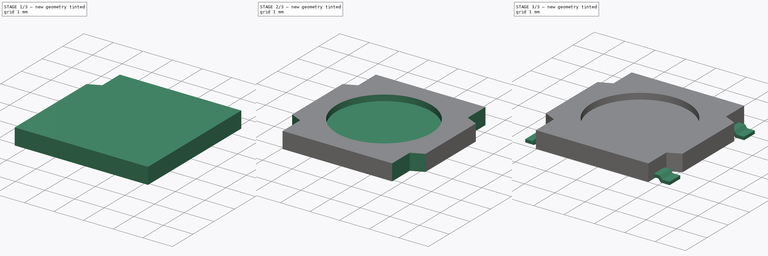
[diagram: build sequence overview — one tinted view per stage of 3, left to right]
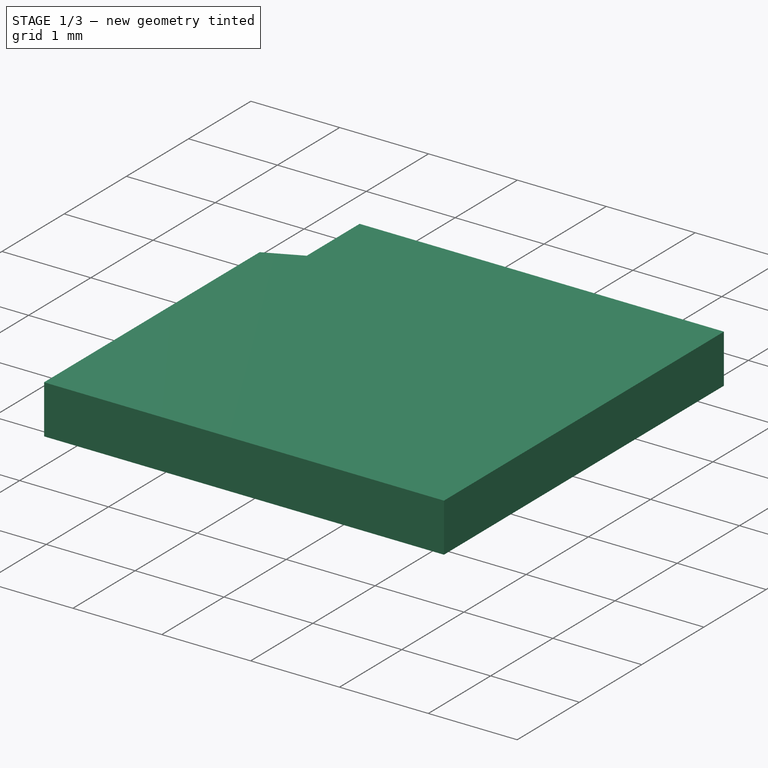
[diagram: stage 1 of 3 — iso view after this stage's code; geometry added in this stage tinted green]
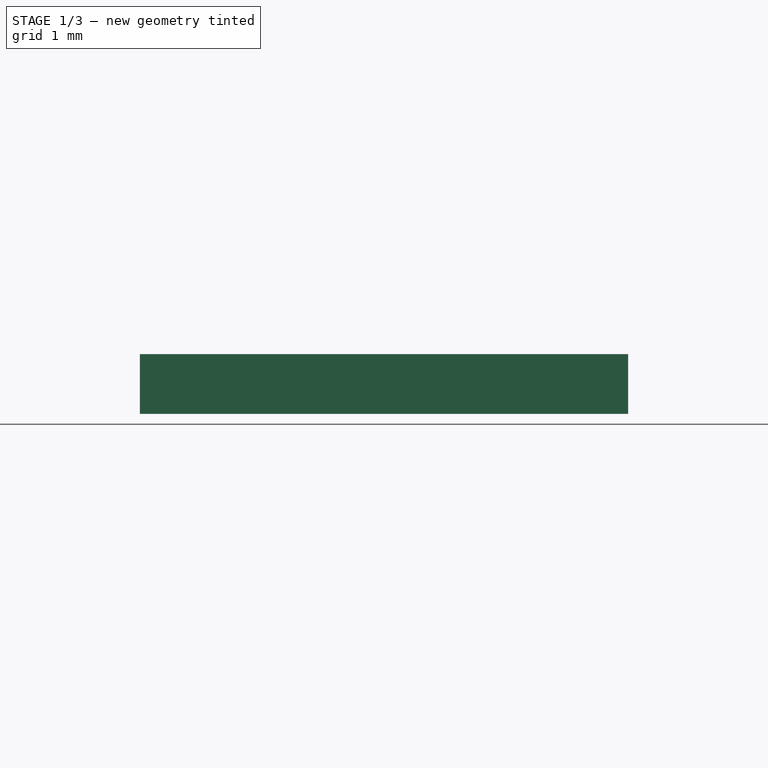
[diagram: stage 1 of 3 — front view after this stage's code; geometry added in this stage tinted green]
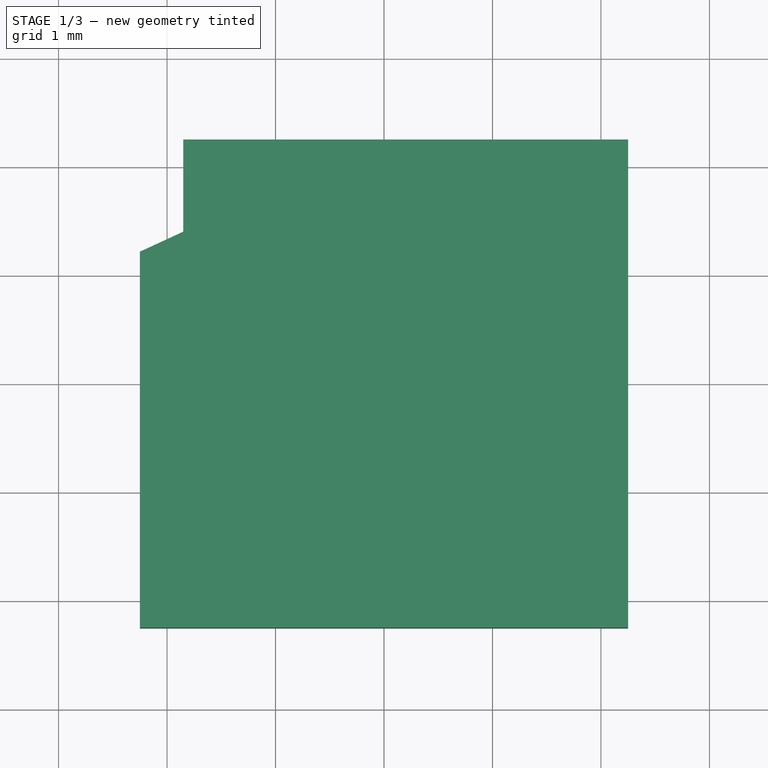
[diagram: stage 1 of 3 — top view after this stage's code; geometry added in this stage tinted green]
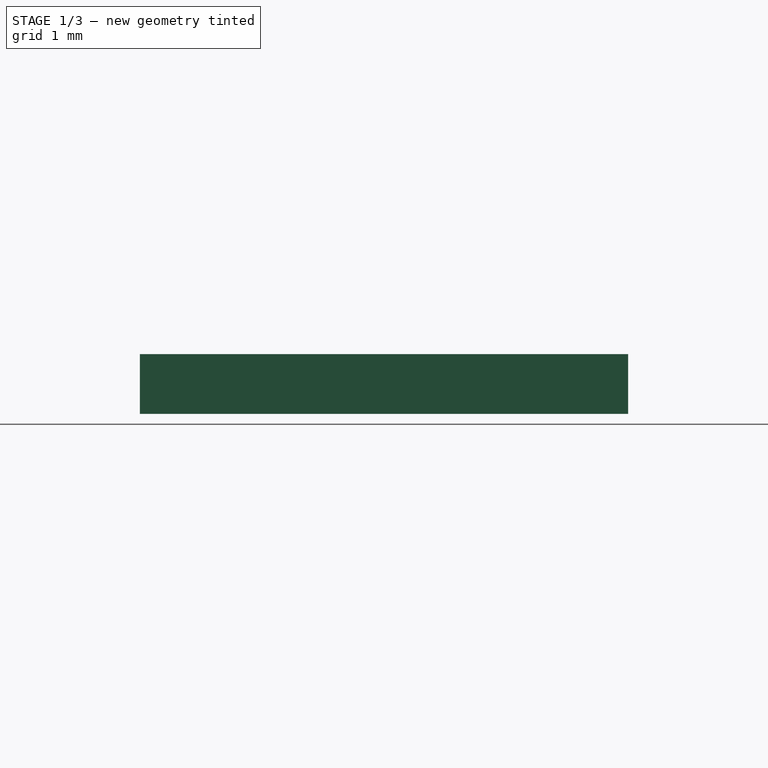
[diagram: stage 1 of 3 — right view after this stage's code; geometry added in this stage tinted green]
FCSTD DOCUMENT  (FreeCAD 1.0R39109 (Git))
Label: TL3315NF100Q
License: All rights reserved
LicenseURL: http://en.wikipedia.org/wiki/All_rights_reserved
objects: Sketcher::SketchObject×5, PartDesign::Mirrored×4, PartDesign::Pad×2, PartDesign::Pocket×2, PartDesign::MultiTransform×2, PartDesign::Plane×1, PartDesign::Body×1
note: 36 computed .brp shape members not serialized (recipe doc carries the construction recipe); baked Part::Feature solids carry a one-line shape summary decoded from their .brp

FEATURE [Sketcher::SketchObject] Sketch
  ArcFitTolerance = 1e-06
  AttachmentSupport = -> [XY_Plane]
  FullyConstrained = true
  MakeInternals = false
  MapMode = 5
  sketch-geometry (4):
    g0: LineSegment StartX=-2.25 StartY=2.25 StartZ=0 EndX=-2.25 EndY=-2.25 EndZ=0
    g1: LineSegment StartX=-2.25 StartY=-2.25 StartZ=0 EndX=2.25 EndY=-2.25 EndZ=0
    g2: LineSegment StartX=2.25 StartY=-2.25 StartZ=0 EndX=2.25 EndY=2.25 EndZ=0
    g3: LineSegment StartX=2.25 StartY=2.25 StartZ=0 EndX=-2.25 EndY=2.25 EndZ=0
  constraints (11):
    c: Coincident(g0,g1)
    c: Coincident(g1,g2)
    c: Coincident(g2,g3)
    c: Coincident(g3,g0)
    c: Vertical(g0)
    c: Vertical(g2)
    c: Horizontal(g1)
    c: Horizontal(g3)
    c: Symmetric(g2,g0,g-1)
    c: DistanceX(g3,g3) = 4.5
    c: DistanceY(g0,g0) = 4.5
FEATURE [PartDesign::Pad] Pad  label="main shape"
  Direction = (0,0,1)
  Length = 0.55
  Length2 = 10
  Profile = -> Sketch
  ReferenceAxis = -> Sketch [N_Axis]
  Suppressed = false
  Type = 0
FEATURE [Sketcher::SketchObject] Sketch001
  ArcFitTolerance = 1e-06
  AttachmentSupport = -> [XY_Plane]
  FullyConstrained = true
  MakeInternals = false
  MapMode = 5
  sketch-geometry (4):
    g0: LineSegment StartX=-1.85 StartY=2.5 StartZ=0 EndX=-1.85 EndY=1.4 EndZ=0
    g1: LineSegment StartX=-1.85 StartY=1.4 StartZ=0 EndX=-2.5 EndY=1.1 EndZ=0
    g2: LineSegment StartX=-1.85 StartY=2.5 StartZ=0 EndX=-2.5 EndY=2.5 EndZ=0
    g3: LineSegment StartX=-2.5 StartY=2.5 StartZ=0 EndX=-2.5 EndY=1.1 EndZ=0
  constraints (12):
    c: Vertical(g0)
    c: Coincident(g1,g0)
    c: Coincident(g2,g0)
    c: Horizontal(g2)
    c: Coincident(g3,g2)
    c: Coincident(g3,g1)
    c: Vertical(g3)
    c: DistanceX(g0,g-1) = 1.85
    c: DistanceX(g1,g-1) = 2.5
    c: DistanceY(g-1,g2) = 2.5
    c: DistanceY(g0,g0) = 1.1
    c: DistanceY(g-1,g1) = 1.1
FEATURE [PartDesign::Pocket] Pocket  label="main cut"
  BaseFeature = -> Pad
  Direction = (0,0,-1)
  Length = 5
  Length2 = 5
  Profile = -> Sketch001
  ReferenceAxis = -> Sketch001 [N_Axis]
  Reversed = true
  Suppressed = false
  Type = 1
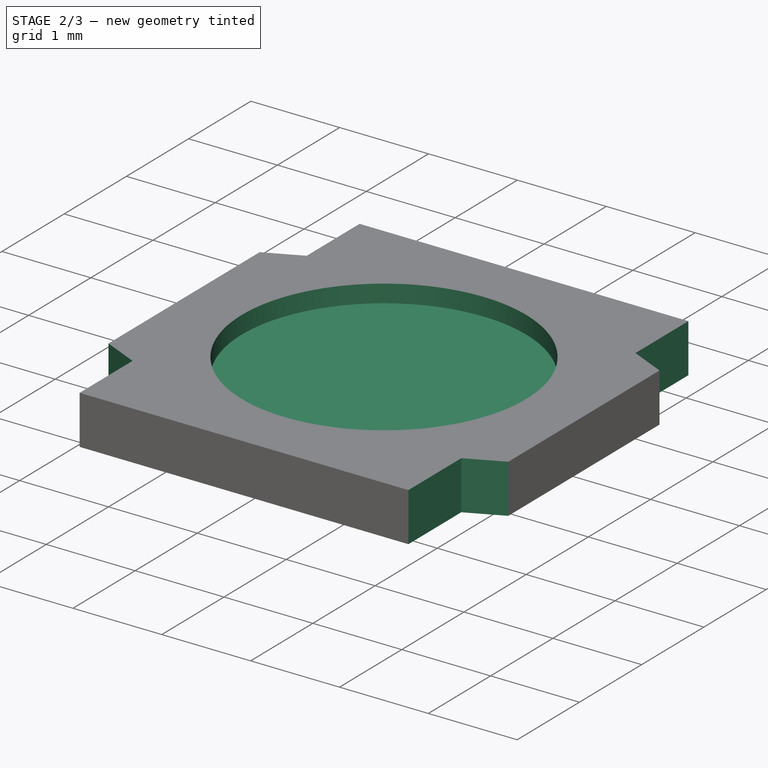
[diagram: stage 2 of 3 — iso view after this stage's code; geometry added in this stage tinted green]
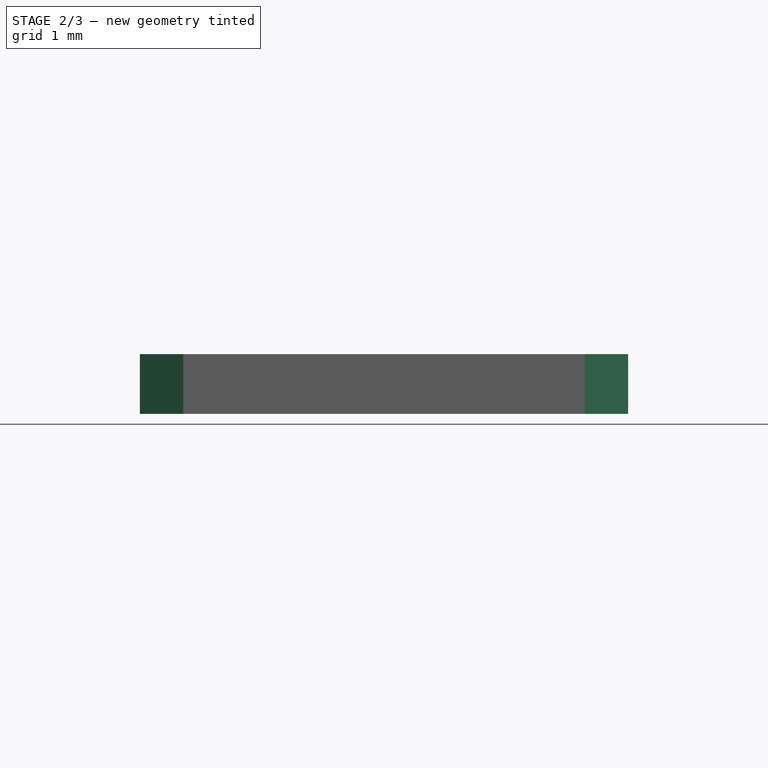
[diagram: stage 2 of 3 — front view after this stage's code; geometry added in this stage tinted green]
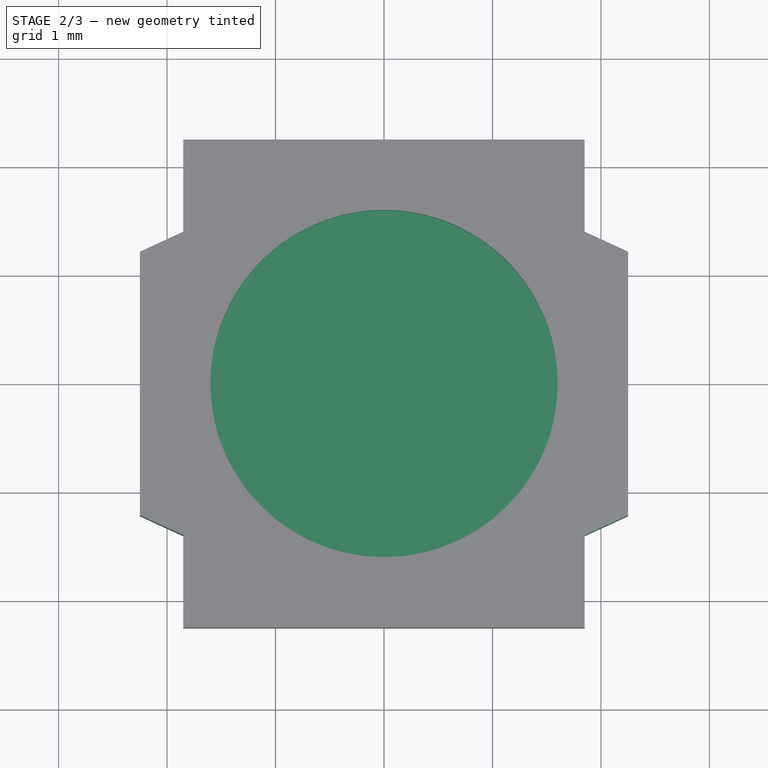
[diagram: stage 2 of 3 — top view after this stage's code; geometry added in this stage tinted green]
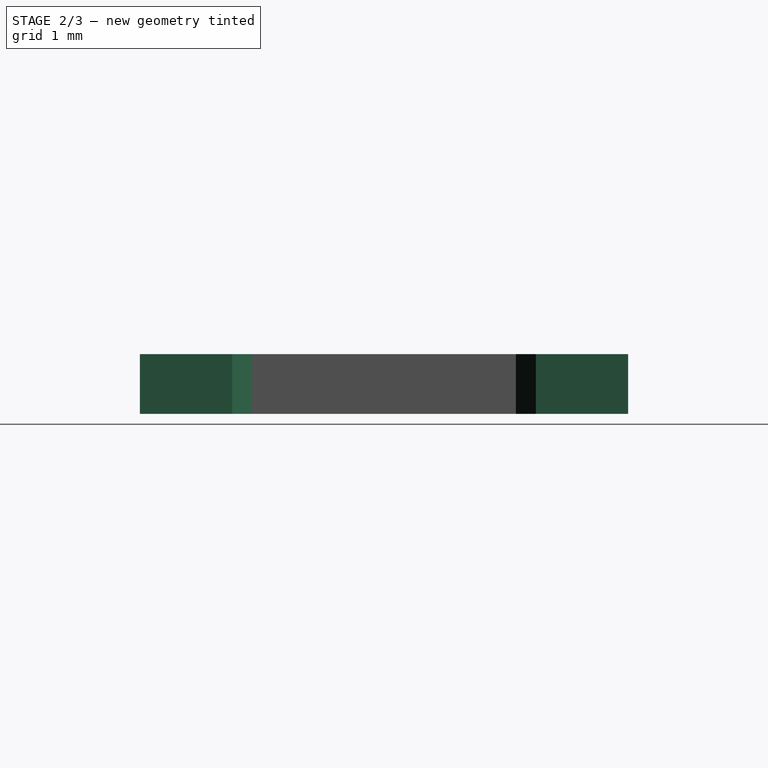
[diagram: stage 2 of 3 — right view after this stage's code; geometry added in this stage tinted green]
FEATURE [PartDesign::Mirrored] Mirrored
  MirrorPlane = -> XZ_Plane
  Suppressed = false
  TransformMode = 0
FEATURE [PartDesign::Mirrored] Mirrored001
  MirrorPlane = -> YZ_Plane
  Suppressed = false
  TransformMode = 0
FEATURE [PartDesign::MultiTransform] MultiTransform  label="main cut transform"
  BaseFeature = -> Pocket
  Originals = -> [Pocket]
  Suppressed = false
  TransformMode = 0
  Transformations = -> [Mirrored,Mirrored001]
FEATURE [Sketcher::SketchObject] Sketch002
  ArcFitTolerance = 1e-06
  AttachmentSupport = -> [MultiTransform]
  FullyConstrained = true
  MakeInternals = false
  MapMode = 5
  Placement = pos=(0,0,0.55) rot=(0,0,1;0rad)
  sketch-geometry (1):
    g0: Circle CenterX=0 CenterY=0 CenterZ=0 NormalX=0 NormalY=0 NormalZ=1 AngleXU=0 Radius=1.6
  constraints (2):
    c: Coincident(g0,g-1)
    c: Diameter(g0) = 3.2
FEATURE [PartDesign::Pocket] Pocket001  label="button cut"
  BaseFeature = -> MultiTransform
  Direction = (0,0,-1)
  Length = 0.2
  Length2 = 5
  Profile = -> Sketch002
  ReferenceAxis = -> Sketch002 [N_Axis]
  Suppressed = false
  Type = 0
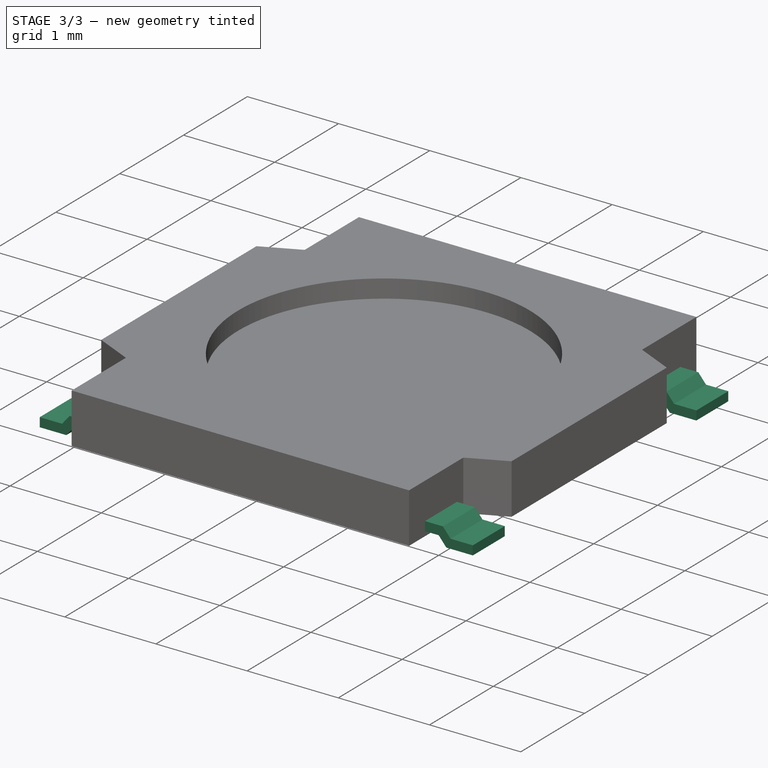
[diagram: stage 3 of 3 — iso view after this stage's code; geometry added in this stage tinted green]
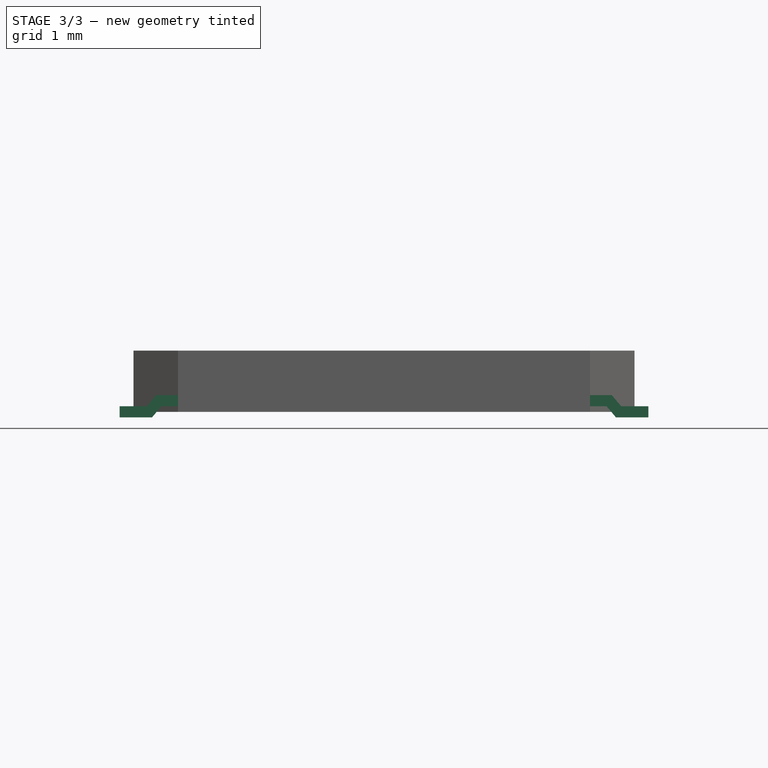
[diagram: stage 3 of 3 — front view after this stage's code; geometry added in this stage tinted green]
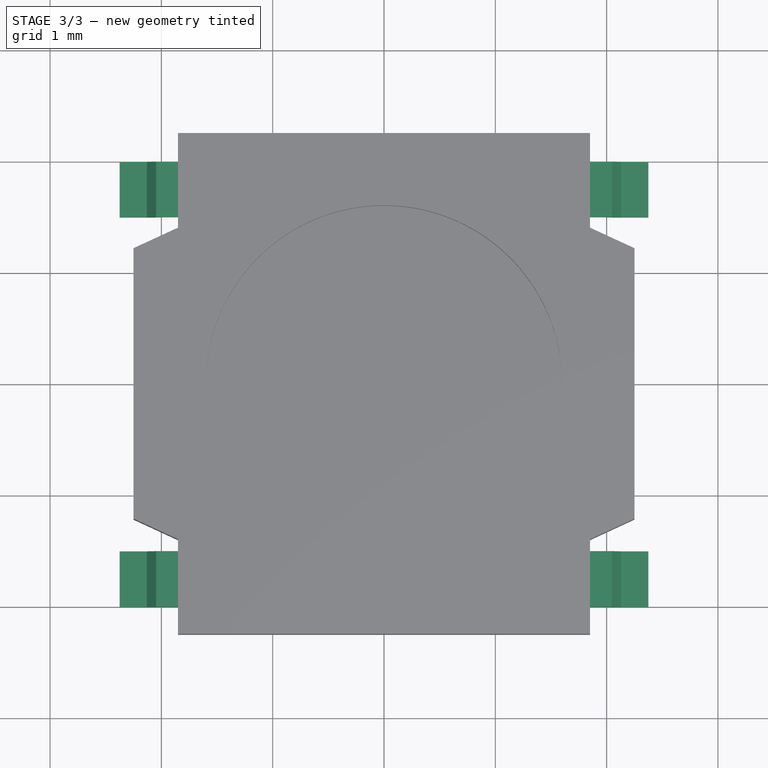
[diagram: stage 3 of 3 — top view after this stage's code; geometry added in this stage tinted green]
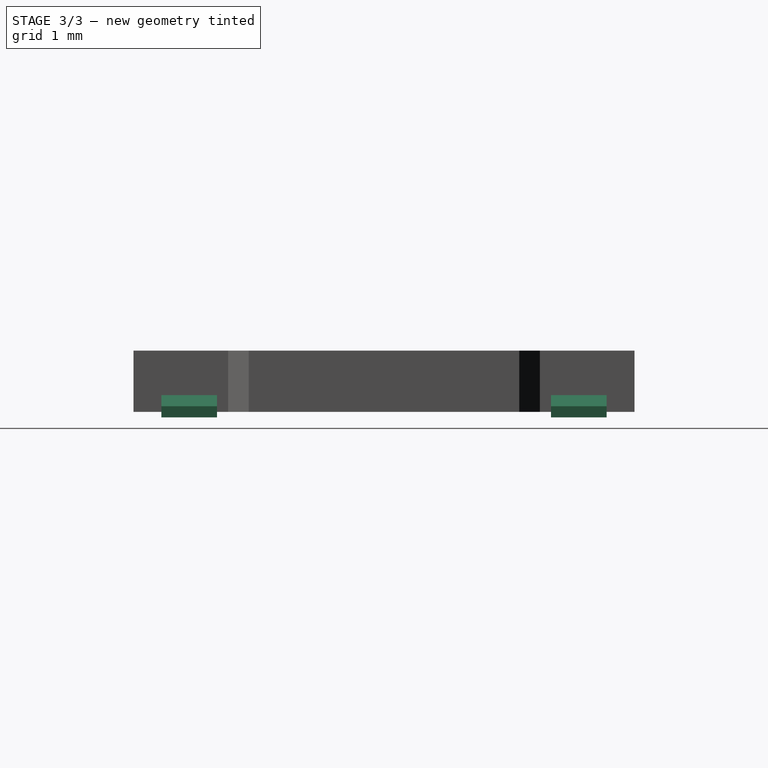
[diagram: stage 3 of 3 — right view after this stage's code; geometry added in this stage tinted green]
FEATURE [PartDesign::Plane] DatumPlane  label="terminal plane"
  AttachmentOffset = pos=(0,0,-1.75) rot=(0,0,1;0rad)
  AttachmentSupport = -> [XZ_Plane]
  Length = 60
  MapMode = 5
  Placement = pos=(0,1.75,-4e-16) rot=(1,0,0;1.5708rad)
  ResizeMode = 0
  Width = 60
FEATURE [Sketcher::SketchObject] Sketch003
  ArcFitTolerance = 1e-06
  AttachmentSupport = -> [DatumPlane]
  FullyConstrained = true
  MakeInternals = false
  MapMode = 5
  Placement = pos=(0,1.75,-4e-16) rot=(1,0,0;1.5708rad)
  sketch-geometry (9):
    g0: LineSegment StartX=-2.375 StartY=-0.05 StartZ=0 EndX=-2.375 EndY=0.05 EndZ=0
    g1: LineSegment StartX=-2.375 StartY=-0.05 StartZ=0 EndX=-2.08391 EndY=-0.05 EndZ=0
    g2: LineSegment StartX=-2.08391 StartY=-0.05 StartZ=0 EndX=-2 EndY=0.05 EndZ=0
    g3: LineSegment StartX=-2.375 StartY=0.05 StartZ=0 EndX=-2.13054 EndY=0.05 EndZ=0
    g4: LineSegment StartX=-2.13054 StartY=0.05 StartZ=0 EndX=-2.04663 EndY=0.15 EndZ=0
    g5: LineSegment StartX=-2.04663 StartY=0.15 StartZ=0 EndX=-1.75554 EndY=0.15 EndZ=0
    g6: LineSegment StartX=-2 StartY=0.05 StartZ=0 EndX=-1.75554 EndY=0.05 EndZ=0
    g7: LineSegment [constr] StartX=-2.05394 StartY=-0.0142788 StartZ=0 EndX=-2.13054 EndY=0.05 EndZ=0
    g8: LineSegment StartX=-1.75554 StartY=0.05 StartZ=0 EndX=-1.75554 EndY=0.15 EndZ=0
  constraints (26):
    c: DistanceX(g0,g-1) = 2.375
    c: Coincident(g1,g0)
    c: Horizontal(g1)
    c: Coincident(g2,g1)
    c: DistanceX(g2,g-1) = 2
    c: DistanceY(g0,g-1) = 0.05
    c: Symmetric(g0,g0,g-1)
    c: Coincident(g3,g0)
    c: Horizontal(g3)
    c: Coincident(g4,g3)
    c: Coincident(g5,g4)
    c: Horizontal(g5)
    c: Coincident(g6,g2)
    c: Horizontal(g6)
    c: Parallel(g4,g2)
    c: PointOnObject(g7,g2)
    c: Equal(g7,g0)
    c: Perpendicular(g4,g7)
    c: Horizontal(g2,g3)
    c: Coincident(g8,g6)
    c: Coincident(g8,g5)
    c: Vertical(g8)
    c: Equal(g8,g0)
    c: Equal(g1,g5)
    c: Angle(g2,g6) = 2.26893
    c: Coincident(g7,g3)
FEATURE [PartDesign::Pad] Pad001  label="terminal"
  BaseFeature = -> Pocket001
  Direction = (0,-1,2e-16)
  Length = 0.5
  Length2 = 10
  Midplane = true
  Profile = -> Sketch003
  ReferenceAxis = -> Sketch003 [N_Axis]
  Suppressed = false
  Type = 0
FEATURE [PartDesign::Mirrored] Mirrored002
  MirrorPlane = -> XZ_Plane
  Suppressed = false
  TransformMode = 0
FEATURE [PartDesign::Mirrored] Mirrored003
  MirrorPlane = -> YZ_Plane
  Suppressed = false
  TransformMode = 0
FEATURE [PartDesign::MultiTransform] MultiTransform001
  BaseFeature = -> Pad001
  Originals = -> [Pad001]
  Suppressed = false
  TransformMode = 0
  Transformations = -> [Mirrored002,Mirrored003]
FEATURE [Sketcher::SketchObject] Sketch004
  ArcFitTolerance = 1e-06
  AttachmentSupport = -> [XZ_Plane]
  FullyConstrained = true
  MakeInternals = false
  MapMode = 5
  Placement = pos=(0,0,0) rot=(1,0,0;1.5708rad)
  sketch-geometry (3):
    g0: ArcOfCircle CenterX=0.0548313 CenterY=-6.44979 CenterZ=0 NormalX=0 NormalY=0 NormalZ=1 AngleXU=0 Radius=7 StartAngle=1.57863 EndAngle=1.83898
    g1: LineSegment StartX=-1.8 StartY=0.3 StartZ=0 EndX=0 EndY=0.3 EndZ=0
    g2: LineSegment StartX=4e-16 StartY=0.55 StartZ=0 EndX=0 EndY=0.3 EndZ=0
  constraints (10):
    c: Diameter(g0) = 14
    c: Coincident(g1,g0)
    c: PointOnObject(g1,g-2)
    c: Horizontal(g1)
    c: PointOnObject(g0,g-2)
    c: DistanceY(g-1,g0) = 0.55
    c: Coincident(g2,g0)
    c: Coincident(g2,g1)
    c: DistanceY(g2,g2) = 0.25
    c: DistanceX(g1,g1) = 1.8
FEATURE [PartDesign::Body] Body
  AllowCompound = false
  Group = -> [Sketch,Pad,Sketch001,Pocket,MultiTransform,Mirrored,Mirrored001,Sketch002,Pocket001,DatumPlane,Sketch003,Pad001,MultiTransform001,Mirrored002,Mirrored003,Sketch004]
  Origin = -> Origin
  Tip = -> MultiTransform001
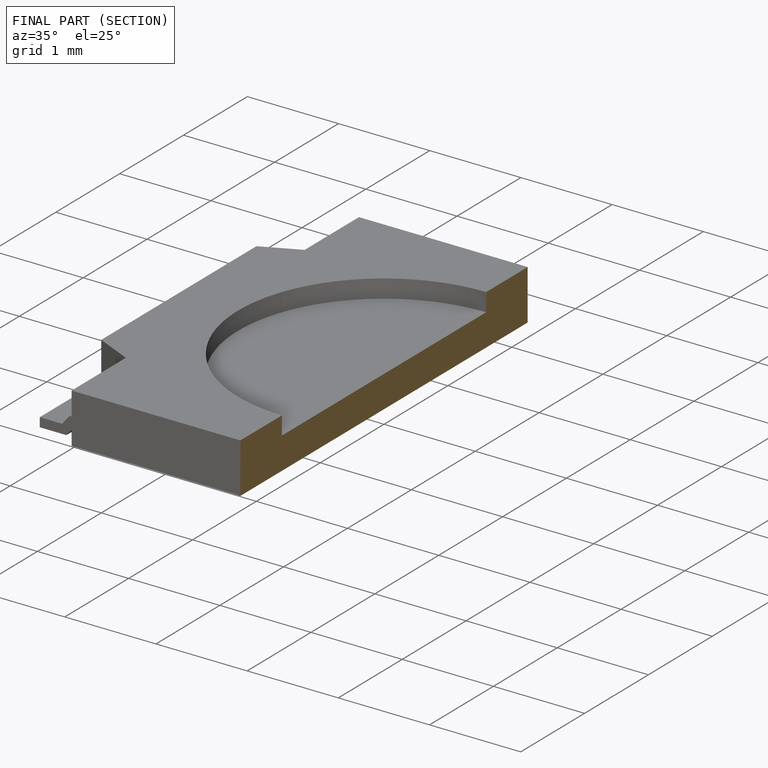
[diagram: finished part — half-section view (interior)]
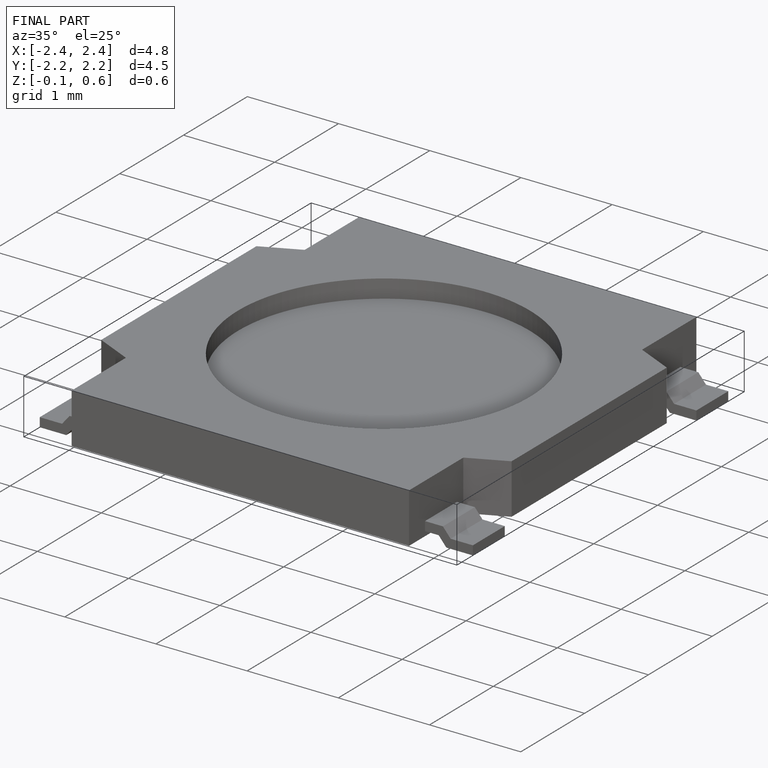
[diagram: finished part — iso view with bounding-box wireframe]
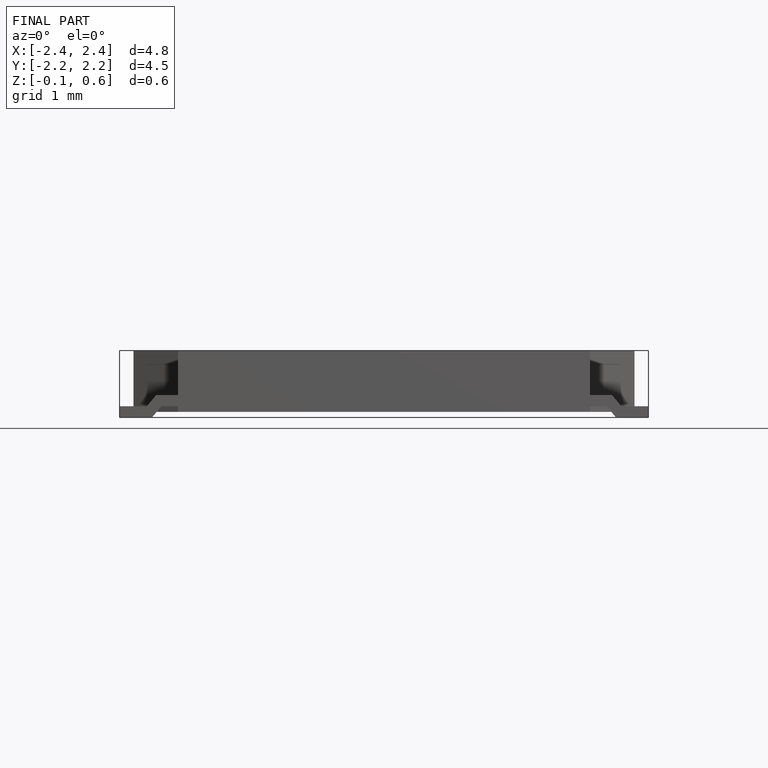
[diagram: finished part — front view with bounding-box wireframe]
